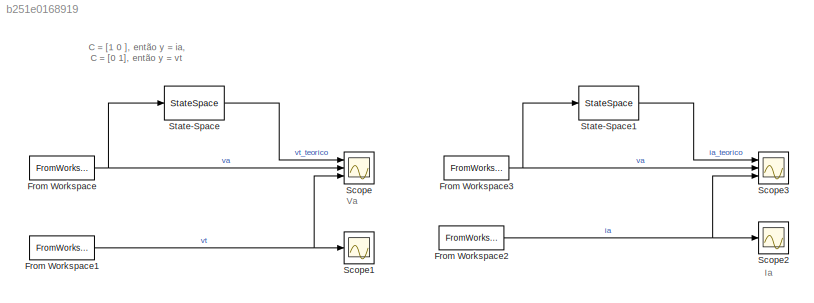
MODEL slx_b251e0168919
KIND model
CONFIG AbsTol = auto
CONFIG EnableMultiTasking = off
CONFIG FixedStep = auto
CONFIG MaxStep = auto
CONFIG MinStep = auto
CONFIG RelTol = 1e-3
CONFIG SampleTimeConstraint = Unconstrained
CONFIG SolverName = VariableStepAuto
CONFIG StartTime = 0.0
CONFIG StopTime = 5
BLOCK [FromWorkspace] From Workspace
  VariableName = [t,va]
BLOCK [FromWorkspace] From Workspace1
  VariableName = [t, vt]
BLOCK [FromWorkspace] From Workspace2
  VariableName = [t, ia]
BLOCK [FromWorkspace] From Workspace3
  VariableName = [t,va]
BLOCK [Scope] Scope
  Floating = off
  NumInputPorts = 3
  Ports = [3]
  ScopeSpecificationString = Simulink.scopes.TimeScopeBlockCfg('CurrentConfiguration', extmgr.ConfigurationSet(extmgr.Configuration('Core','General UI',true),extmgr.Configuration('Core','Source UI',true),extmgr.Configuration('Sources','WiredSimulink',true,'SampleTime','0.0001'),extmgr.Configuration('Visuals','Time Domain',true,'SerializedDisplays',{struct('MinYLimReal','-9.33489','MaxYLimReal','9.76914','YLabelReal','','MinYL...<+1589ch>
BLOCK [Scope] Scope1
  Floating = off
  NumInputPorts = 1
  Ports = [1]
  ScopeSpecificationString = Simulink.scopes.TimeScopeBlockCfg('CurrentConfiguration', extmgr.ConfigurationSet(extmgr.Configuration('Core','General UI',true),extmgr.Configuration('Core','Source UI',true),extmgr.Configuration('Sources','WiredSimulink',true,'DataLoggingVariableName','ScopeData1'),extmgr.Configuration('Visuals','Time Domain',true,'SerializedDisplays',{struct('MinYLimReal','-9.33489','MaxYLimReal','9.76914','YLab...<+1450ch>
BLOCK [Scope] Scope2
  Floating = off
  NumInputPorts = 1
  Ports = [1]
  ScopeSpecificationString = Simulink.scopes.TimeScopeBlockCfg('CurrentConfiguration', extmgr.ConfigurationSet(extmgr.Configuration('Core','General UI',true),extmgr.Configuration('Core','Source UI',true),extmgr.Configuration('Sources','WiredSimulink',true,'DataLoggingVariableName','ScopeData2'),extmgr.Configuration('Visuals','Time Domain',true,'SerializedDisplays',{struct('MinYLimReal','-10','MaxYLimReal','10','YLabelReal',''...<+849ch>
BLOCK [Scope] Scope3
  Floating = off
  NumInputPorts = 3
  Ports = [3]
  ScopeSpecificationString = Simulink.scopes.TimeScopeBlockCfg('CurrentConfiguration', extmgr.ConfigurationSet(extmgr.Configuration('Core','General UI',true),extmgr.Configuration('Core','Source UI',true),extmgr.Configuration('Sources','WiredSimulink',true,'SampleTime','0.0001','DataLoggingVariableName','ScopeData1'),extmgr.Configuration('Visuals','Time Domain',true,'SerializedDisplays',{struct('MinYLimReal','-6.51677','MaxYLi...<+1628ch>
BLOCK [StateSpace] State-Space
  A = [-Ra/La, -Kg/(Kt*La); (Ka*Kt)/J, -f/J]
  B = [1/La; 0]
  C = [0, 1]
  D = [0]
  InitialCondition = 0
  Ports = [1, 1]
BLOCK [StateSpace] State-Space1
  A = [-Ra/La, -Kg/(Kt*La); (Ka*Kt)/J, -f/J]
  B = [1/La; 0]
  C = [1, 0]
  D = [0]
  InitialCondition = 0
  Ports = [1, 1]
ANNOTATION (root): C = [1 0 ], então y = ia, C = [0 1], então y = vt
ANNOTATION (root): Ia
ANNOTATION (root): Va
NET From Workspace1:1 -> Scope1:1, Scope:3
NET From Workspace2:1 -> Scope2:1, Scope3:3
NET From Workspace3:1 -> Scope3:2, State-Space1:1
NET From Workspace:1 -> Scope:2, State-Space:1
LINE State-Space1:1 -> Scope3:1
LINE State-Space:1 -> Scope:1
note: NET lines group one-source signal fan-out (src -> all destinations, sorted); 1:1 wires keep LINE
